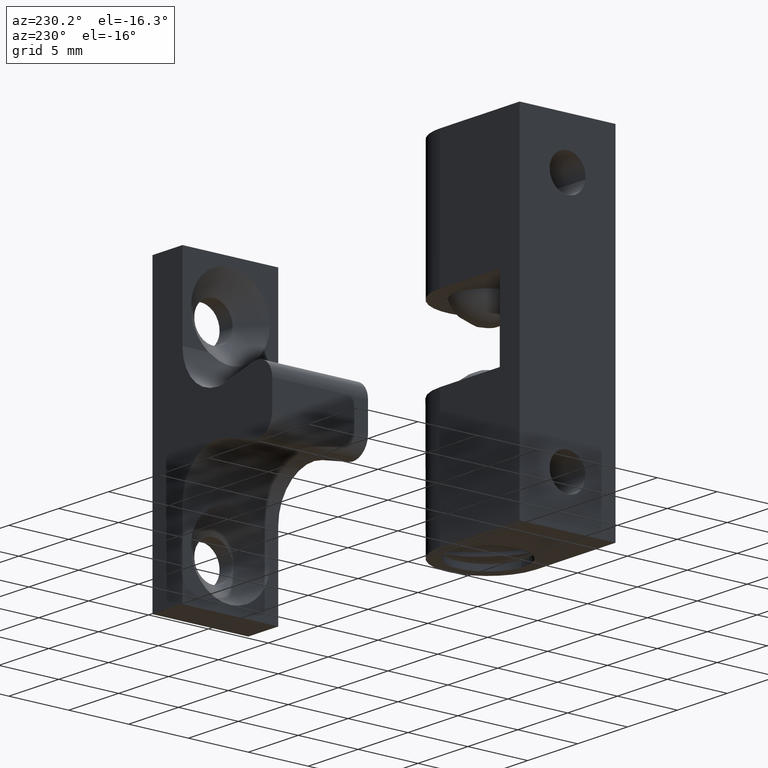
[diagram: clean part render]
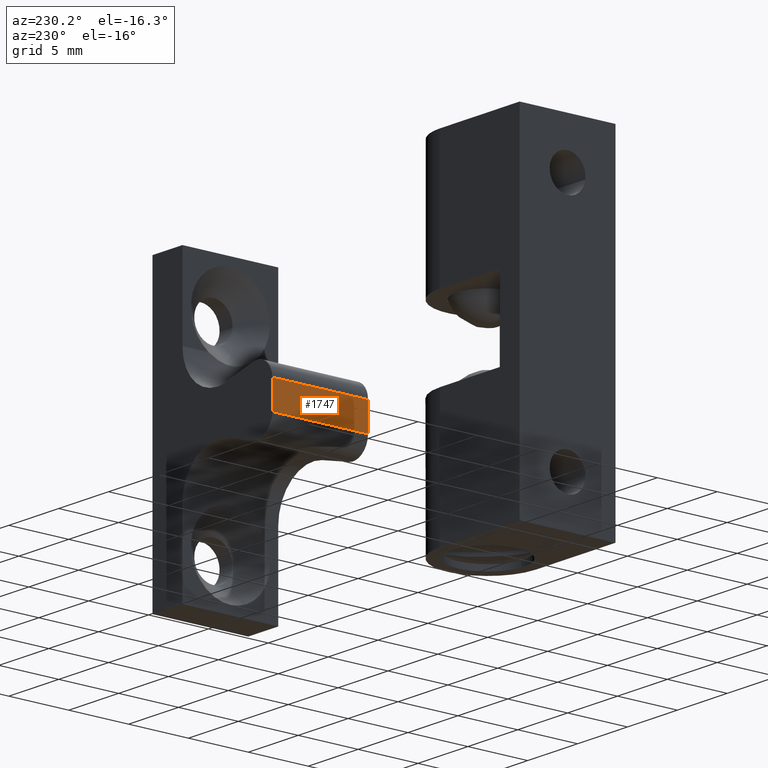
[diagram: same view with one face highlighted and labeled with its STEP entity id]
A machine part, auxiliary view. The second image highlights one B-rep face of the part: STEP entity #1747.
In plain terms, the highlighted face is a freeform B-spline surface patch.
Its self-contained STEP definition (entity closure, byte-faithful):
#1529=CARTESIAN_POINT('',(24.801787863870100,4.0,-1.149999999999976));
#1530=VERTEX_POINT('',#1529);
#1546=CARTESIAN_POINT('',(24.801787863870150,4.0,1.150000000000000));
#1547=VERTEX_POINT('',#1546);
#1548=CARTESIAN_POINT('',(24.801787863870100,4.0,-1.149999999999976));
#1549=CARTESIAN_POINT('',(24.801787863870150,4.0,1.150000000000000));
#1550=QUASI_UNIFORM_CURVE('',1,(#1548,#1549),.UNSPECIFIED.,.F.,.U.);
#1551=EDGE_CURVE('',#1530,#1547,#1550,.T.);
#1585=CARTESIAN_POINT('',(24.801787863870150,-4.0,1.150000000000000));
#1586=VERTEX_POINT('',#1585);
#1602=CARTESIAN_POINT('',(24.801787863870100,-4.0,-1.149999999999976));
#1603=VERTEX_POINT('',#1602);
#1604=CARTESIAN_POINT('',(24.801787863870100,-4.0,-1.149999999999976));
#1605=CARTESIAN_POINT('',(24.801787863870150,-4.0,1.150000000000000));
#1606=QUASI_UNIFORM_CURVE('',1,(#1604,#1605),.UNSPECIFIED.,.F.,.U.);
#1607=EDGE_CURVE('',#1603,#1586,#1606,.T.);
#1718=CARTESIAN_POINT('',(24.801787863870150,-4.0,1.150000000000000));
#1719=CARTESIAN_POINT('',(24.801787863870150,4.0,1.150000000000000));
#1720=QUASI_UNIFORM_CURVE('',1,(#1718,#1719),.UNSPECIFIED.,.F.,.U.);
#1721=EDGE_CURVE('',#1586,#1547,#1720,.T.);
#1732=CARTESIAN_POINT('',(24.801787863870150,-4.399599984494448,-1.264884973951374));
#1733=CARTESIAN_POINT('',(24.801787863870150,-4.399599984494448,1.264885056205808));
#1734=CARTESIAN_POINT('',(24.801787863870150,4.399600199071169,-1.264884973951374));
#1735=CARTESIAN_POINT('',(24.801787863870150,4.399600199071169,1.264885056205808));
#1736=B_SPLINE_SURFACE_WITH_KNOTS('',1,1,((#1732,#1734),(#1733,#1735)),.UNSPECIFIED.,.F.,.F.,.U.,(2,2),(2,2),(0.0,2.529770030157182),(0.0,8.799200183565617),.UNSPECIFIED.);
#1737=ORIENTED_EDGE('',*,*,#1551,.F.);
#1738=CARTESIAN_POINT('',(24.801787863870100,-4.0,-1.149999999999976));
#1739=CARTESIAN_POINT('',(24.801787863870100,4.0,-1.149999999999976));
#1740=QUASI_UNIFORM_CURVE('',1,(#1738,#1739),.UNSPECIFIED.,.F.,.U.);
#1741=EDGE_CURVE('',#1603,#1530,#1740,.T.);
#1742=ORIENTED_EDGE('',*,*,#1741,.F.);
#1743=ORIENTED_EDGE('',*,*,#1607,.T.);
#1744=ORIENTED_EDGE('',*,*,#1721,.T.);
#1745=EDGE_LOOP('',(#1737,#1742,#1743,#1744));
#1746=FACE_OUTER_BOUND('',#1745,.T.);
#1747=ADVANCED_FACE('',(#1746),#1736,.T.);